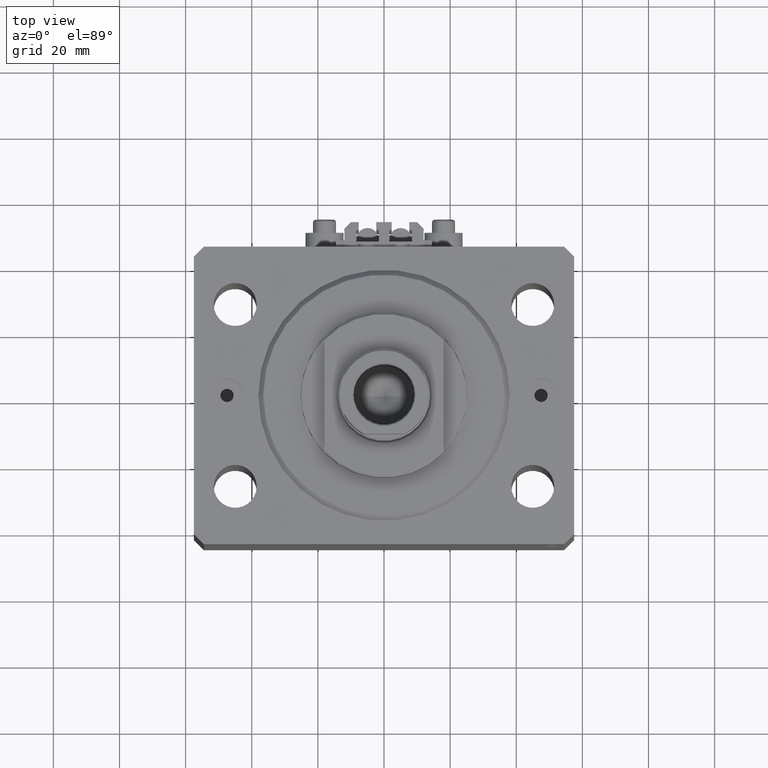
[diagram: clean part render]
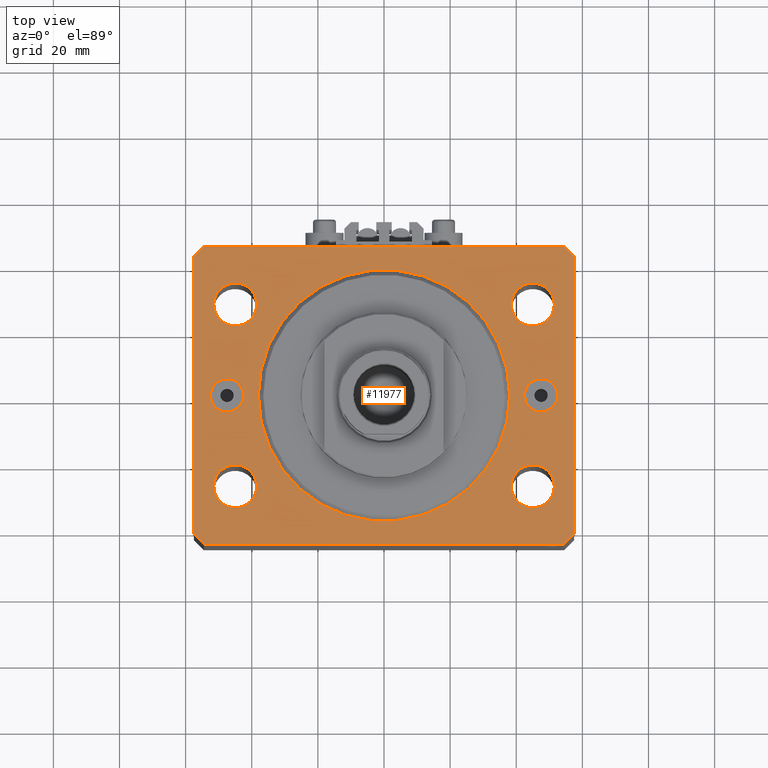
[diagram: same view with one face highlighted and labeled with its STEP entity id]
A machine part, top view. The second image highlights one B-rep face of the part: STEP entity #11977.
In plain terms, the highlighted planar face has unit normal (0, 0, 1).
Its self-contained STEP definition (entity closure, byte-faithful):
#44 = VERTEX_POINT ( 'NONE', #5213 ) ;
#203 = CARTESIAN_POINT ( 'NONE',  ( -47.50000000000000000, 0.000000000000000000, 0.000000000000000000 ) ) ;
#461 = VERTEX_POINT ( 'NONE', #33065 ) ;
#1698 = CARTESIAN_POINT ( 'NONE',  ( 52.50000000000000000, 0.000000000000000000, 0.000000000000000000 ) ) ;
#1977 = EDGE_CURVE ( 'NONE', #7378, #28874, #34721, .T. ) ;
#2993 = CARTESIAN_POINT ( 'NONE',  ( 47.50000000000000000, 0.000000000000000000, 0.000000000000000000 ) ) ;
#3231 = CARTESIAN_POINT ( 'NONE',  ( -57.50000000000000711, -42.00000000000000711, 0.000000000000000000 ) ) ;
#3830 = EDGE_LOOP ( 'NONE', ( #43461, #28752 ) ) ;
#4202 = CARTESIAN_POINT ( 'NONE',  ( 38.49999999999998579, -27.50000000000000355, 0.000000000000000000 ) ) ;
#4310 = FACE_BOUND ( 'NONE', #10712, .T. ) ;
#4347 = EDGE_CURVE ( 'NONE', #16180, #461, #40443, .T. ) ;
#4498 = CARTESIAN_POINT ( 'NONE',  ( 45.00000000000000000, 27.49999999999999289, 0.000000000000000000 ) ) ;
#4690 = LINE ( 'NONE', #19507, #12112 ) ;
#5213 = CARTESIAN_POINT ( 'NONE',  ( 57.50000000000000711, -41.99999999999998579, 0.000000000000000000 ) ) ;
#5664 = CIRCLE ( 'NONE', #43729, 6.499999999999999112 ) ;
#5736 = DIRECTION ( 'NONE',  ( 0.000000000000000000, 0.000000000000000000, 1.000000000000000000 ) ) ;
#5860 = AXIS2_PLACEMENT_3D ( 'NONE', #25265, #40081, #6790 ) ;
#6316 = CIRCLE ( 'NONE', #24943, 6.499999999999999112 ) ;
#6790 = DIRECTION ( 'NONE',  ( 1.000000000000000000, 0.000000000000000000, 0.000000000000000000 ) ) ;
#6882 = DIRECTION ( 'NONE',  ( 0.7071067811865491270, -0.7071067811865459074, 0.000000000000000000 ) ) ;
#6933 = CIRCLE ( 'NONE', #9240, 6.499999999999999112 ) ;
#7047 = EDGE_CURVE ( 'NONE', #9898, #43270, #36049, .T. ) ;
#7065 = CIRCLE ( 'NONE', #15591, 6.499999999999999112 ) ;
#7378 = VERTEX_POINT ( 'NONE', #13147 ) ;
#7696 = CIRCLE ( 'NONE', #35612, 38.00000000000000000 ) ;
#8099 = EDGE_CURVE ( 'NONE', #13780, #16413, #14964, .T. ) ;
#8594 = VERTEX_POINT ( 'NONE', #34969 ) ;
#8907 = PLANE ( 'NONE',  #39093 ) ;
#9173 = CARTESIAN_POINT ( 'NONE',  ( -57.49999999999998579, 42.00000000000000711, 0.000000000000000000 ) ) ;
#9240 = AXIS2_PLACEMENT_3D ( 'NONE', #4498, #30037, #11555 ) ;
#9795 = CARTESIAN_POINT ( 'NONE',  ( 45.00000000000000000, 27.49999999999999289, 0.000000000000000000 ) ) ;
#9851 = EDGE_CURVE ( 'NONE', #22936, #44239, #5664, .T. ) ;
#9898 = VERTEX_POINT ( 'NONE', #16896 ) ;
#10014 = ORIENTED_EDGE ( 'NONE', *, *, #16907, .T. ) ;
#10085 = EDGE_CURVE ( 'NONE', #46536, #46563, #21985, .T. ) ;
#10106 = VECTOR ( 'NONE', #42723, 1000.000000000000000 ) ;
#10400 = CIRCLE ( 'NONE', #13493, 4.999999999999997335 ) ;
#10700 = ORIENTED_EDGE ( 'NONE', *, *, #24164, .T. ) ;
#10712 = EDGE_LOOP ( 'NONE', ( #10700, #37281 ) ) ;
#10759 = ORIENTED_EDGE ( 'NONE', *, *, #7047, .T. ) ;
#10761 = CARTESIAN_POINT ( 'NONE',  ( -47.50000000000000000, 0.000000000000000000, 0.000000000000000000 ) ) ;
#10831 = DIRECTION ( 'NONE',  ( 1.000000000000000000, 0.000000000000000000, 0.000000000000000000 ) ) ;
#10961 = AXIS2_PLACEMENT_3D ( 'NONE', #27997, #42801, #28253 ) ;
#11141 = VECTOR ( 'NONE', #40915, 1000.000000000000000 ) ;
#11555 = DIRECTION ( 'NONE',  ( 1.000000000000000000, 0.000000000000000000, 0.000000000000000000 ) ) ;
#11586 = DIRECTION ( 'NONE',  ( 1.000000000000000000, 0.000000000000000000, 0.000000000000000000 ) ) ;
#11875 = DIRECTION ( 'NONE',  ( 1.000000000000000000, 0.000000000000000000, 0.000000000000000000 ) ) ;
#11977 = ADVANCED_FACE ( 'NONE', ( #38307, #16185, #23733, #37581, #30789, #23495, #31028, #4310 ), #8907, .T. ) ;
#12112 = VECTOR ( 'NONE', #34330, 1000.000000000000000 ) ;
#12242 = EDGE_CURVE ( 'NONE', #31602, #44, #46409, .T. ) ;
#13147 = CARTESIAN_POINT ( 'NONE',  ( 57.50000000000055422, 41.99999999999997868, 0.000000000000000000 ) ) ;
#13488 = CARTESIAN_POINT ( 'NONE',  ( -38.00000000000000000, 4.653657836759941941E-15, 0.000000000000000000 ) ) ;
#13493 = AXIS2_PLACEMENT_3D ( 'NONE', #2993, #14891, #18291 ) ;
#13704 = CARTESIAN_POINT ( 'NONE',  ( 42.50000000000000000, 6.123233995736762338E-16, 0.000000000000000000 ) ) ;
#13780 = VERTEX_POINT ( 'NONE', #13488 ) ;
#14070 = DIRECTION ( 'NONE',  ( 6.443258625056715108E-15, 1.000000000000000000, 0.000000000000000000 ) ) ;
#14337 = VECTOR ( 'NONE', #30904, 1000.000000000000000 ) ;
#14419 = EDGE_CURVE ( 'NONE', #22847, #46323, #43071, .T. ) ;
#14530 = ORIENTED_EDGE ( 'NONE', *, *, #12242, .T. ) ;
#14891 = DIRECTION ( 'NONE',  ( 0.000000000000000000, -0.000000000000000000, -1.000000000000000000 ) ) ;
#14964 = CIRCLE ( 'NONE', #31268, 38.00000000000000000 ) ;
#15317 = ORIENTED_EDGE ( 'NONE', *, *, #8099, .F. ) ;
#15506 = VERTEX_POINT ( 'NONE', #39773 ) ;
#15591 = AXIS2_PLACEMENT_3D ( 'NONE', #45829, #38790, #34906 ) ;
#15830 = CARTESIAN_POINT ( 'NONE',  ( 54.50000000000000711, -44.99999999999998579, 0.000000000000000000 ) ) ;
#16180 = VERTEX_POINT ( 'NONE', #41250 ) ;
#16185 = FACE_BOUND ( 'NONE', #41434, .T. ) ;
#16268 = EDGE_LOOP ( 'NONE', ( #18966, #39636 ) ) ;
#16285 = LINE ( 'NONE', #27480, #23972 ) ;
#16413 = VERTEX_POINT ( 'NONE', #25667 ) ;
#16864 = AXIS2_PLACEMENT_3D ( 'NONE', #9795, #28513, #24621 ) ;
#16896 = CARTESIAN_POINT ( 'NONE',  ( -57.50000000000000711, -42.00000000000000711, 0.000000000000000000 ) ) ;
#16907 = EDGE_CURVE ( 'NONE', #28874, #46536, #4690, .T. ) ;
#17599 = CARTESIAN_POINT ( 'NONE',  ( 54.50000000000059686, 45.00000000000002842, 0.000000000000000000 ) ) ;
#17621 = ORIENTED_EDGE ( 'NONE', *, *, #28688, .F. ) ;
#18181 = CARTESIAN_POINT ( 'NONE',  ( -42.50000000000000000, 0.000000000000000000, 0.000000000000000000 ) ) ;
#18291 = DIRECTION ( 'NONE',  ( 1.000000000000000000, 0.000000000000000000, 0.000000000000000000 ) ) ;
#18391 = EDGE_CURVE ( 'NONE', #15506, #41121, #37806, .T. ) ;
#18480 = ORIENTED_EDGE ( 'NONE', *, *, #9851, .F. ) ;
#18757 = VECTOR ( 'NONE', #14070, 1000.000000000000000 ) ;
#18966 = ORIENTED_EDGE ( 'NONE', *, *, #43396, .F. ) ;
#19124 = DIRECTION ( 'NONE',  ( 1.000000000000000000, 0.000000000000000000, -0.000000000000000000 ) ) ;
#19142 = DIRECTION ( 'NONE',  ( 1.000000000000000000, 0.000000000000000000, 0.000000000000000000 ) ) ;
#19507 = CARTESIAN_POINT ( 'NONE',  ( 54.50000000000059686, 45.00000000000002842, 0.000000000000000000 ) ) ;
#19739 = ORIENTED_EDGE ( 'NONE', *, *, #35750, .F. ) ;
#20300 = CARTESIAN_POINT ( 'NONE',  ( 44.99999999999998579, -27.50000000000000355, 0.000000000000000000 ) ) ;
#20518 = DIRECTION ( 'NONE',  ( 0.000000000000000000, 0.000000000000000000, 1.000000000000000000 ) ) ;
#20755 = CARTESIAN_POINT ( 'NONE',  ( 44.99999999999998579, -27.50000000000000355, 0.000000000000000000 ) ) ;
#20822 = ORIENTED_EDGE ( 'NONE', *, *, #18391, .F. ) ;
#21124 = CARTESIAN_POINT ( 'NONE',  ( 54.50000000000000711, -44.99999999999998579, 0.000000000000000000 ) ) ;
#21262 = ORIENTED_EDGE ( 'NONE', *, *, #28775, .F. ) ;
#21597 = LINE ( 'NONE', #45063, #18757 ) ;
#21767 = DIRECTION ( 'NONE',  ( 0.000000000000000000, 0.000000000000000000, 1.000000000000000000 ) ) ;
#21985 = LINE ( 'NONE', #26583, #11141 ) ;
#22280 = EDGE_LOOP ( 'NONE', ( #10014, #22646, #35115, #10759, #26220, #14530, #39707, #45668 ) ) ;
#22646 = ORIENTED_EDGE ( 'NONE', *, *, #10085, .T. ) ;
#22847 = VERTEX_POINT ( 'NONE', #13704 ) ;
#22886 = EDGE_CURVE ( 'NONE', #46889, #34243, #42115, .T. ) ;
#22936 = VERTEX_POINT ( 'NONE', #4202 ) ;
#23126 = DIRECTION ( 'NONE',  ( 0.000000000000000000, 0.000000000000000000, 1.000000000000000000 ) ) ;
#23246 = DIRECTION ( 'NONE',  ( 0.000000000000000000, 0.000000000000000000, 1.000000000000000000 ) ) ;
#23264 = DIRECTION ( 'NONE',  ( 0.000000000000000000, 0.000000000000000000, 1.000000000000000000 ) ) ;
#23345 = DIRECTION ( 'NONE',  ( -2.478176394252581141E-16, -1.000000000000000000, 0.000000000000000000 ) ) ;
#23495 = FACE_BOUND ( 'NONE', #29204, .T. ) ;
#23733 = FACE_BOUND ( 'NONE', #26182, .T. ) ;
#23972 = VECTOR ( 'NONE', #23345, 1000.000000000000000 ) ;
#24164 = EDGE_CURVE ( 'NONE', #46323, #22847, #10400, .T. ) ;
#24222 = VECTOR ( 'NONE', #6882, 1000.000000000000114 ) ;
#24567 = LINE ( 'NONE', #35732, #42671 ) ;
#24621 = DIRECTION ( 'NONE',  ( 1.000000000000000000, 0.000000000000000000, 0.000000000000000000 ) ) ;
#24642 = DIRECTION ( 'NONE',  ( 1.000000000000000000, 0.000000000000000000, 0.000000000000000000 ) ) ;
#24769 = CARTESIAN_POINT ( 'NONE',  ( 51.49999999999998579, -27.50000000000000355, 0.000000000000000000 ) ) ;
#24943 = AXIS2_PLACEMENT_3D ( 'NONE', #41819, #23126, #45702 ) ;
#25078 = AXIS2_PLACEMENT_3D ( 'NONE', #10761, #40403, #24642 ) ;
#25237 = CARTESIAN_POINT ( 'NONE',  ( -54.50000000000000711, -45.00000000000000000, 0.000000000000000000 ) ) ;
#25265 = CARTESIAN_POINT ( 'NONE',  ( 47.50000000000000000, 0.000000000000000000, 0.000000000000000000 ) ) ;
#25608 = CARTESIAN_POINT ( 'NONE',  ( 51.50000000000000000, 27.49999999999999289, 0.000000000000000000 ) ) ;
#25667 = CARTESIAN_POINT ( 'NONE',  ( 38.00000000000000000, 0.000000000000000000, 0.000000000000000000 ) ) ;
#25814 = EDGE_CURVE ( 'NONE', #34243, #46889, #29073, .T. ) ;
#26182 = EDGE_LOOP ( 'NONE', ( #17621, #20822 ) ) ;
#26220 = ORIENTED_EDGE ( 'NONE', *, *, #29235, .T. ) ;
#26583 = CARTESIAN_POINT ( 'NONE',  ( -54.49999999999999289, 45.00000000000000000, 0.000000000000000000 ) ) ;
#26875 = CARTESIAN_POINT ( 'NONE',  ( -52.50000000000000000, 6.123233995736762338E-16, 0.000000000000000000 ) ) ;
#27167 = CARTESIAN_POINT ( 'NONE',  ( -45.00000000000000000, 27.49999999999999645, 0.000000000000000000 ) ) ;
#27480 = CARTESIAN_POINT ( 'NONE',  ( -57.49999999999998579, 42.00000000000000711, 0.000000000000000000 ) ) ;
#27922 = CARTESIAN_POINT ( 'NONE',  ( 57.50000000000055422, 41.99999999999997868, 0.000000000000000000 ) ) ;
#27997 = CARTESIAN_POINT ( 'NONE',  ( -45.00000000000000000, 27.49999999999999645, 0.000000000000000000 ) ) ;
#28253 = DIRECTION ( 'NONE',  ( 1.000000000000000000, 0.000000000000000000, 0.000000000000000000 ) ) ;
#28513 = DIRECTION ( 'NONE',  ( 0.000000000000000000, 0.000000000000000000, 1.000000000000000000 ) ) ;
#28688 = EDGE_CURVE ( 'NONE', #41121, #15506, #6933, .T. ) ;
#28752 = ORIENTED_EDGE ( 'NONE', *, *, #22886, .F. ) ;
#28775 = EDGE_CURVE ( 'NONE', #44239, #22936, #39546, .T. ) ;
#28874 = VERTEX_POINT ( 'NONE', #17599 ) ;
#29073 = CIRCLE ( 'NONE', #30595, 4.999999999999997335 ) ;
#29204 = EDGE_LOOP ( 'NONE', ( #41935, #15317 ) ) ;
#29235 = EDGE_CURVE ( 'NONE', #43270, #31602, #24567, .T. ) ;
#30037 = DIRECTION ( 'NONE',  ( 0.000000000000000000, 0.000000000000000000, 1.000000000000000000 ) ) ;
#30300 = CARTESIAN_POINT ( 'NONE',  ( 0.000000000000000000, 0.000000000000000000, 0.000000000000000000 ) ) ;
#30595 = AXIS2_PLACEMENT_3D ( 'NONE', #203, #23264, #19142 ) ;
#30789 = FACE_BOUND ( 'NONE', #16268, .T. ) ;
#30904 = DIRECTION ( 'NONE',  ( 0.7071067811865483499, 0.7071067811865466846, 0.000000000000000000 ) ) ;
#30905 = CIRCLE ( 'NONE', #37097, 6.499999999999999112 ) ;
#31028 = FACE_BOUND ( 'NONE', #3830, .T. ) ;
#31268 = AXIS2_PLACEMENT_3D ( 'NONE', #32724, #21767, #10831 ) ;
#31602 = VERTEX_POINT ( 'NONE', #21124 ) ;
#31733 = DIRECTION ( 'NONE',  ( 1.000000000000000000, 0.000000000000000000, 0.000000000000000000 ) ) ;
#31973 = EDGE_LOOP ( 'NONE', ( #21262, #18480 ) ) ;
#32217 = EDGE_CURVE ( 'NONE', #46563, #9898, #16285, .T. ) ;
#32724 = CARTESIAN_POINT ( 'NONE',  ( 0.000000000000000000, 0.000000000000000000, 0.000000000000000000 ) ) ;
#33065 = CARTESIAN_POINT ( 'NONE',  ( -38.50000000000000000, 27.49999999999999645, 0.000000000000000000 ) ) ;
#34243 = VERTEX_POINT ( 'NONE', #18181 ) ;
#34330 = DIRECTION ( 'NONE',  ( -1.000000000000000000, -2.546383084002638829E-16, 0.000000000000000000 ) ) ;
#34721 = LINE ( 'NONE', #27922, #10106 ) ;
#34906 = DIRECTION ( 'NONE',  ( 1.000000000000000000, 0.000000000000000000, 0.000000000000000000 ) ) ;
#34969 = CARTESIAN_POINT ( 'NONE',  ( -38.49999999999998579, -27.50000000000000355, 0.000000000000000000 ) ) ;
#35115 = ORIENTED_EDGE ( 'NONE', *, *, #32217, .T. ) ;
#35612 = AXIS2_PLACEMENT_3D ( 'NONE', #30300, #45092, #11586 ) ;
#35732 = CARTESIAN_POINT ( 'NONE',  ( -54.50000000000000711, -45.00000000000000000, 0.000000000000000000 ) ) ;
#35750 = EDGE_CURVE ( 'NONE', #461, #16180, #30905, .T. ) ;
#36049 = LINE ( 'NONE', #3231, #24222 ) ;
#36999 = ORIENTED_EDGE ( 'NONE', *, *, #4347, .F. ) ;
#37097 = AXIS2_PLACEMENT_3D ( 'NONE', #27167, #45140, #11875 ) ;
#37281 = ORIENTED_EDGE ( 'NONE', *, *, #14419, .T. ) ;
#37581 = FACE_BOUND ( 'NONE', #31973, .T. ) ;
#37688 = EDGE_CURVE ( 'NONE', #16413, #13780, #7696, .T. ) ;
#37749 = DIRECTION ( 'NONE',  ( 1.000000000000000000, 1.273191542001326317E-16, 0.000000000000000000 ) ) ;
#37806 = CIRCLE ( 'NONE', #16864, 6.499999999999999112 ) ;
#38263 = DIRECTION ( 'NONE',  ( 1.000000000000000000, 0.000000000000000000, 0.000000000000000000 ) ) ;
#38307 = FACE_OUTER_BOUND ( 'NONE', #22280, .T. ) ;
#38790 = DIRECTION ( 'NONE',  ( 0.000000000000000000, 0.000000000000000000, 1.000000000000000000 ) ) ;
#39093 = AXIS2_PLACEMENT_3D ( 'NONE', #45578, #23246, #19124 ) ;
#39546 = CIRCLE ( 'NONE', #40293, 6.499999999999999112 ) ;
#39636 = ORIENTED_EDGE ( 'NONE', *, *, #43184, .F. ) ;
#39707 = ORIENTED_EDGE ( 'NONE', *, *, #44327, .T. ) ;
#39773 = CARTESIAN_POINT ( 'NONE',  ( 38.50000000000000000, 27.49999999999999289, 0.000000000000000000 ) ) ;
#40081 = DIRECTION ( 'NONE',  ( 0.000000000000000000, -0.000000000000000000, -1.000000000000000000 ) ) ;
#40177 = CARTESIAN_POINT ( 'NONE',  ( -51.49999999999998579, -27.50000000000000355, 0.000000000000000000 ) ) ;
#40293 = AXIS2_PLACEMENT_3D ( 'NONE', #20755, #20518, #38263 ) ;
#40403 = DIRECTION ( 'NONE',  ( 0.000000000000000000, 0.000000000000000000, 1.000000000000000000 ) ) ;
#40443 = CIRCLE ( 'NONE', #10961, 6.499999999999999112 ) ;
#40915 = DIRECTION ( 'NONE',  ( -0.7071067811865483499, -0.7071067811865466846, 0.000000000000000000 ) ) ;
#41121 = VERTEX_POINT ( 'NONE', #25608 ) ;
#41250 = CARTESIAN_POINT ( 'NONE',  ( -51.50000000000000000, 27.49999999999999645, 0.000000000000000000 ) ) ;
#41434 = EDGE_LOOP ( 'NONE', ( #19739, #36999 ) ) ;
#41819 = CARTESIAN_POINT ( 'NONE',  ( -44.99999999999998579, -27.50000000000000355, 0.000000000000000000 ) ) ;
#41935 = ORIENTED_EDGE ( 'NONE', *, *, #37688, .F. ) ;
#42115 = CIRCLE ( 'NONE', #25078, 4.999999999999997335 ) ;
#42671 = VECTOR ( 'NONE', #37749, 1000.000000000000000 ) ;
#42723 = DIRECTION ( 'NONE',  ( -0.7071067811865369146, 0.7071067811865581199, 0.000000000000000000 ) ) ;
#42801 = DIRECTION ( 'NONE',  ( 0.000000000000000000, 0.000000000000000000, 1.000000000000000000 ) ) ;
#43071 = CIRCLE ( 'NONE', #5860, 4.999999999999997335 ) ;
#43184 = EDGE_CURVE ( 'NONE', #43839, #8594, #6316, .T. ) ;
#43270 = VERTEX_POINT ( 'NONE', #25237 ) ;
#43396 = EDGE_CURVE ( 'NONE', #8594, #43839, #7065, .T. ) ;
#43461 = ORIENTED_EDGE ( 'NONE', *, *, #25814, .F. ) ;
#43729 = AXIS2_PLACEMENT_3D ( 'NONE', #20300, #5736, #31733 ) ;
#43839 = VERTEX_POINT ( 'NONE', #40177 ) ;
#44239 = VERTEX_POINT ( 'NONE', #24769 ) ;
#44327 = EDGE_CURVE ( 'NONE', #44, #7378, #21597, .T. ) ;
#44661 = CARTESIAN_POINT ( 'NONE',  ( -54.49999999999999289, 45.00000000000000000, 0.000000000000000000 ) ) ;
#45063 = CARTESIAN_POINT ( 'NONE',  ( 57.50000000000000711, -41.99999999999998579, 0.000000000000000000 ) ) ;
#45092 = DIRECTION ( 'NONE',  ( 0.000000000000000000, 0.000000000000000000, 1.000000000000000000 ) ) ;
#45140 = DIRECTION ( 'NONE',  ( 0.000000000000000000, 0.000000000000000000, 1.000000000000000000 ) ) ;
#45578 = CARTESIAN_POINT ( 'NONE',  ( 0.000000000000000000, 0.000000000000000000, 0.000000000000000000 ) ) ;
#45668 = ORIENTED_EDGE ( 'NONE', *, *, #1977, .T. ) ;
#45702 = DIRECTION ( 'NONE',  ( 1.000000000000000000, 0.000000000000000000, 0.000000000000000000 ) ) ;
#45829 = CARTESIAN_POINT ( 'NONE',  ( -44.99999999999998579, -27.50000000000000355, 0.000000000000000000 ) ) ;
#46323 = VERTEX_POINT ( 'NONE', #1698 ) ;
#46409 = LINE ( 'NONE', #15830, #14337 ) ;
#46536 = VERTEX_POINT ( 'NONE', #44661 ) ;
#46563 = VERTEX_POINT ( 'NONE', #9173 ) ;
#46889 = VERTEX_POINT ( 'NONE', #26875 ) ;